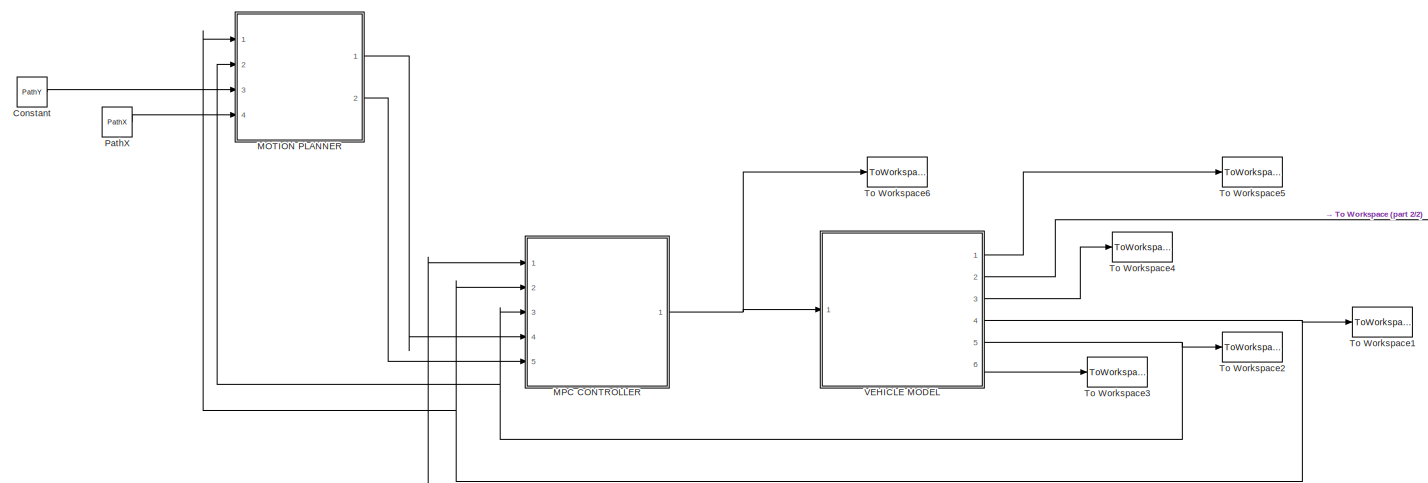
[diagram: root canvas - part 1/2, most of the canvas]
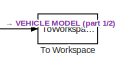
[diagram: root canvas - part 2/2, middle right region]
MODEL slx_a83fef0010d5
KIND model
CONFIG AbsTol = auto
CONFIG FixedStep = 0.01
CONFIG MaxStep = auto
CONFIG MinStep = auto
CONFIG RelTol = 1e-3
CONFIG SampleTimeConstraint = Unconstrained
CONFIG Solver = FixedStepAuto
CONFIG SolverMode = Auto
CONFIG SolverName = FixedStepAuto
CONFIG StartTime = 0.0
CONFIG StopTime = 16
BLOCK [Constant] Constant
  Value = PathY
  VectorParams1D = off
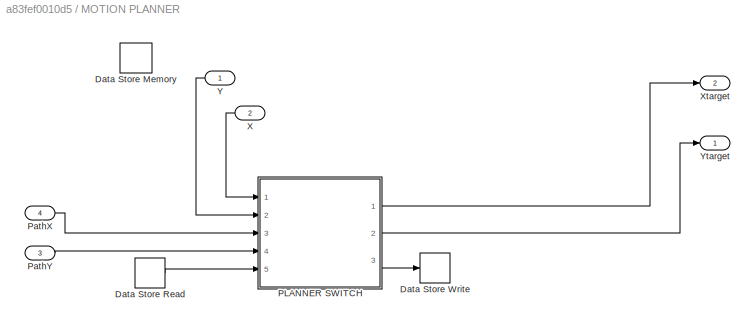
BLOCK [SubSystem] MOTION PLANNER
  Ports = [4, 2]
  RequestExecContextInheritance = off
  Variant = off
BLOCK [DataStoreMemory] MOTION PLANNER/Data Store Memory
  DataStoreName = passed
  OutDataTypeStr = uint8
  ReadBeforeWriteMsg = warning
  WriteAfterReadMsg = warning
  WriteAfterWriteMsg = warning
BLOCK [DataStoreRead] MOTION PLANNER/Data Store Read
  DataStoreName = passed
  Ports = [0, 1]
BLOCK [DataStoreWrite] MOTION PLANNER/Data Store Write
  DataStoreName = passed
  Ports = [1]
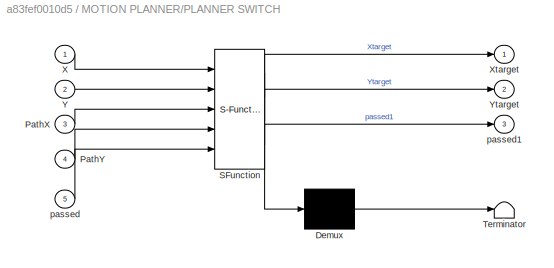
BLOCK [SubSystem] MOTION PLANNER/PLANNER SWITCH
  ErrorFcn = Stateflow.Translate.translate
  PermitHierarchicalResolution = ExplicitOnly
  Ports = [5, 3]
  RequestExecContextInheritance = off
  SFBlockType = MATLAB Function
  TreatAsAtomicUnit = on
  Variant = off
BLOCK [Demux] MOTION PLANNER/PLANNER SWITCH/ Demux 
  Outputs = 1
  Ports = [1, 1]
BLOCK [S-Function] MOTION PLANNER/PLANNER SWITCH/ SFunction 
  EnableBusSupport = on
  FunctionName = sf_sfun
  PortCounts = [5 4]
  Ports = [5, 4]
  SFunctionDeploymentMode = off
  Tag = Stateflow S-Function kinematic_obstacle_mpc2 1
BLOCK [Terminator] MOTION PLANNER/PLANNER SWITCH/ Terminator 
BLOCK [Inport] MOTION PLANNER/PLANNER SWITCH/PathX
  IconDisplay = Port number
  Port = 3
BLOCK [Inport] MOTION PLANNER/PLANNER SWITCH/PathY
  IconDisplay = Port number
  Port = 4
BLOCK [Inport] MOTION PLANNER/PLANNER SWITCH/X
  IconDisplay = Port number
BLOCK [Outport] MOTION PLANNER/PLANNER SWITCH/Xtarget
  IconDisplay = Port number
BLOCK [Inport] MOTION PLANNER/PLANNER SWITCH/Y
  IconDisplay = Port number
  Port = 2
BLOCK [Outport] MOTION PLANNER/PLANNER SWITCH/Ytarget
  IconDisplay = Port number
  Port = 2
BLOCK [Inport] MOTION PLANNER/PLANNER SWITCH/passed
  IconDisplay = Port number
  Port = 5
BLOCK [Outport] MOTION PLANNER/PLANNER SWITCH/passed1
  IconDisplay = Port number
  Port = 3
BLOCK [Inport] MOTION PLANNER/PathX 
  IconDisplay = Port number
  Port = 4
BLOCK [Inport] MOTION PLANNER/PathY
  IconDisplay = Port number
  Port = 3
BLOCK [Inport] MOTION PLANNER/X
  IconDisplay = Port number
  Port = 2
BLOCK [Outport] MOTION PLANNER/Xtarget
  IconDisplay = Port number
  Port = 2
BLOCK [Inport] MOTION PLANNER/Y 
  IconDisplay = Port number
BLOCK [Outport] MOTION PLANNER/Ytarget
  IconDisplay = Port number
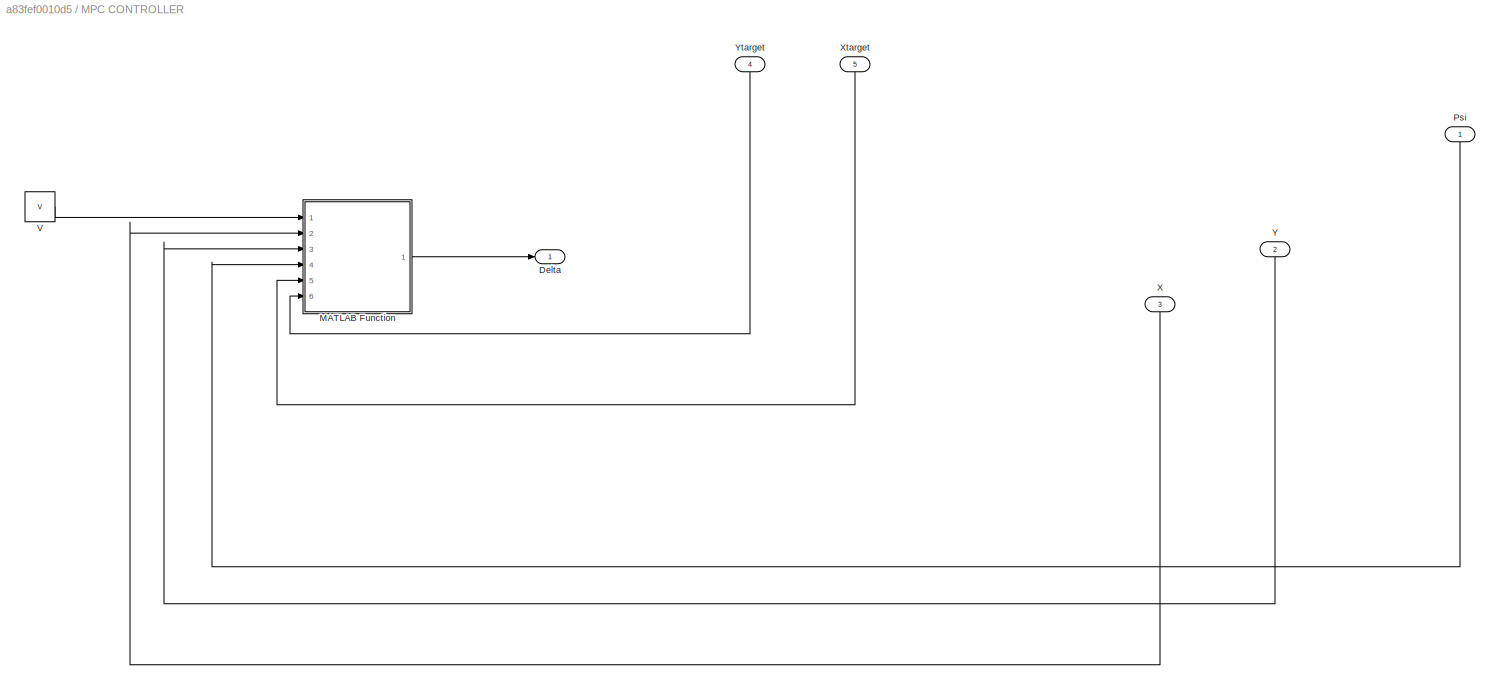
BLOCK [SubSystem] MPC CONTROLLER
  Ports = [5, 1]
  RequestExecContextInheritance = off
  Variant = off
BLOCK [Outport] MPC CONTROLLER/Delta
  IconDisplay = Port number
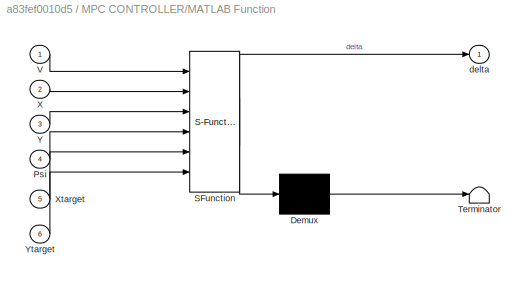
BLOCK [SubSystem] MPC CONTROLLER/MATLAB Function
  ErrorFcn = Stateflow.Translate.translate
  PermitHierarchicalResolution = ExplicitOnly
  Ports = [6, 1]
  RequestExecContextInheritance = off
  SFBlockType = MATLAB Function
  TreatAsAtomicUnit = on
  Variant = off
BLOCK [Demux] MPC CONTROLLER/MATLAB Function/ Demux 
  Outputs = 1
  Ports = [1, 1]
BLOCK [S-Function] MPC CONTROLLER/MATLAB Function/ SFunction 
  EnableBusSupport = on
  FunctionName = sf_sfun
  PortCounts = [6 2]
  Ports = [6, 2]
  SFunctionDeploymentMode = off
  Tag = Stateflow S-Function kinematic_obstacle_mpc2 2
BLOCK [Terminator] MPC CONTROLLER/MATLAB Function/ Terminator 
BLOCK [Inport] MPC CONTROLLER/MATLAB Function/Psi
  IconDisplay = Port number
  Port = 4
BLOCK [Inport] MPC CONTROLLER/MATLAB Function/V
  IconDisplay = Port number
BLOCK [Inport] MPC CONTROLLER/MATLAB Function/X
  IconDisplay = Port number
  Port = 2
BLOCK [Inport] MPC CONTROLLER/MATLAB Function/Xtarget
  IconDisplay = Port number
  Port = 5
BLOCK [Inport] MPC CONTROLLER/MATLAB Function/Y
  IconDisplay = Port number
  Port = 3
BLOCK [Inport] MPC CONTROLLER/MATLAB Function/Ytarget
  IconDisplay = Port number
  Port = 6
BLOCK [Outport] MPC CONTROLLER/MATLAB Function/delta
  IconDisplay = Port number
BLOCK [Inport] MPC CONTROLLER/Psi
  IconDisplay = Port number
BLOCK [Constant] MPC CONTROLLER/V 
  Value = V
BLOCK [Inport] MPC CONTROLLER/X
  IconDisplay = Port number
  Port = 3
BLOCK [Inport] MPC CONTROLLER/Xtarget
  IconDisplay = Port number
  Port = 5
BLOCK [Inport] MPC CONTROLLER/Y
  IconDisplay = Port number
  Port = 2
BLOCK [Inport] MPC CONTROLLER/Ytarget
  IconDisplay = Port number
  Port = 4
BLOCK [Constant] PathX
  Value = PathX
  VectorParams1D = off
BLOCK [ToWorkspace] To Workspace
  FixptAsFi = on
  MaxDataPoints = inf
  Ports = [1]
  SampleTime = -1
  Save2DSignal = 3-D array (concatenate along third dimension)
  SaveFormat = Structure With Time
  VariableName = Psi
BLOCK [ToWorkspace] To Workspace1
  FixptAsFi = on
  MaxDataPoints = inf
  Ports = [1]
  SampleTime = -1
  Save2DSignal = 3-D array (concatenate along third dimension)
  SaveFormat = Structure With Time
  VariableName = Y
BLOCK [ToWorkspace] To Workspace2
  FixptAsFi = on
  MaxDataPoints = inf
  Ports = [1]
  SampleTime = -1
  Save2DSignal = 3-D array (concatenate along third dimension)
  SaveFormat = Structure With Time
  VariableName = X
BLOCK [ToWorkspace] To Workspace3
  FixptAsFi = on
  MaxDataPoints = inf
  Ports = [1]
  SampleTime = -1
  Save2DSignal = 3-D array (concatenate along third dimension)
  SaveFormat = Structure With Time
  VariableName = XDot
BLOCK [ToWorkspace] To Workspace4
  FixptAsFi = on
  MaxDataPoints = inf
  Ports = [1]
  SampleTime = -1
  Save2DSignal = 3-D array (concatenate along third dimension)
  SaveFormat = Structure With Time
  VariableName = YDot
BLOCK [ToWorkspace] To Workspace5
  FixptAsFi = on
  MaxDataPoints = inf
  Ports = [1]
  SampleTime = -1
  Save2DSignal = 3-D array (concatenate along third dimension)
  SaveFormat = Structure With Time
  VariableName = PsiDot
BLOCK [ToWorkspace] To Workspace6
  FixptAsFi = on
  MaxDataPoints = inf
  Ports = [1]
  SampleTime = -1
  Save2DSignal = 3-D array (concatenate along third dimension)
  SaveFormat = Structure With Time
  VariableName = delta
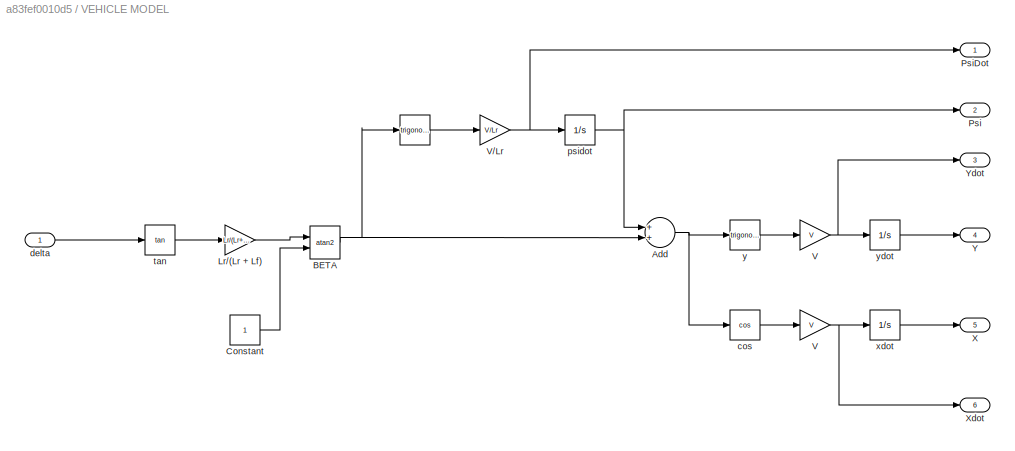
BLOCK [SubSystem] VEHICLE MODEL
  Ports = [1, 6]
  RequestExecContextInheritance = off
  Variant = off
BLOCK [Trigonometry] VEHICLE MODEL/ 
  Ports = [1, 1]
BLOCK [Sum] VEHICLE MODEL/Add
  InputSameDT = off
  OutDataTypeStr = Inherit: Inherit via internal rule
  Ports = [2, 1]
  SaturateOnIntegerOverflow = off
BLOCK [Trigonometry] VEHICLE MODEL/BETA
  Operator = atan2
  Ports = [2, 1]
BLOCK [Constant] VEHICLE MODEL/Constant
BLOCK [Gain] VEHICLE MODEL/Lr//(Lr + Lf)
  Gain = Lr/(Lr+Lf)
  OutDataTypeStr = Inherit: Inherit via internal rule
  ParamDataTypeStr = Inherit: Inherit via internal rule
  SaturateOnIntegerOverflow = off
BLOCK [Outport] VEHICLE MODEL/Psi
  IconDisplay = Port number
  Port = 2
BLOCK [Outport] VEHICLE MODEL/PsiDot
  IconDisplay = Port number
BLOCK [Gain] VEHICLE MODEL/V
  Gain = V
  OutDataTypeStr = Inherit: Inherit via internal rule
  ParamDataTypeStr = Inherit: Inherit via internal rule
  SaturateOnIntegerOverflow = off
BLOCK [Gain] VEHICLE MODEL/V 
  Gain = V
  OutDataTypeStr = Inherit: Inherit via internal rule
  ParamDataTypeStr = Inherit: Inherit via internal rule
  SaturateOnIntegerOverflow = off
BLOCK [Gain] VEHICLE MODEL/V//Lr
  Gain = V/Lr
  OutDataTypeStr = Inherit: Inherit via internal rule
  ParamDataTypeStr = Inherit: Inherit via internal rule
  SaturateOnIntegerOverflow = off
BLOCK [Outport] VEHICLE MODEL/X
  IconDisplay = Port number
  Port = 5
BLOCK [Outport] VEHICLE MODEL/Xdot
  IconDisplay = Port number
  Port = 6
BLOCK [Outport] VEHICLE MODEL/Y
  IconDisplay = Port number
  Port = 4
BLOCK [Outport] VEHICLE MODEL/Ydot
  IconDisplay = Port number
  Port = 3
BLOCK [Trigonometry] VEHICLE MODEL/cos
  Operator = cos
  Ports = [1, 1]
BLOCK [Inport] VEHICLE MODEL/delta 
  IconDisplay = Port number
BLOCK [Integrator] VEHICLE MODEL/psidot
  InitialCondition = Psi0
  Ports = [1, 1]
BLOCK [Trigonometry] VEHICLE MODEL/tan 
  Operator = tan
  Ports = [1, 1]
BLOCK [Integrator] VEHICLE MODEL/xdot
  InitialCondition = X0
  Ports = [1, 1]
BLOCK [Trigonometry] VEHICLE MODEL/y
  Ports = [1, 1]
BLOCK [Integrator] VEHICLE MODEL/ydot
  InitialCondition = Y0
  Ports = [1, 1]
LINE Constant:1 -> MOTION PLANNER:3
LINE MOTION PLANNER/Data Store Read:1 -> MOTION PLANNER/PLANNER SWITCH:5
LINE MOTION PLANNER/PLANNER SWITCH:1 -> MOTION PLANNER/Xtarget:1
LINE MOTION PLANNER/PLANNER SWITCH:2 -> MOTION PLANNER/Ytarget:1
LINE MOTION PLANNER/PLANNER SWITCH:3 -> MOTION PLANNER/Data Store Write:1
LINE MOTION PLANNER/PathX :1 -> MOTION PLANNER/PLANNER SWITCH:3
LINE MOTION PLANNER/PathY:1 -> MOTION PLANNER/PLANNER SWITCH:4
LINE MOTION PLANNER/X:1 -> MOTION PLANNER/PLANNER SWITCH:1
LINE MOTION PLANNER/Y :1 -> MOTION PLANNER/PLANNER SWITCH:2
LINE MOTION PLANNER:1 -> MPC CONTROLLER:4
LINE MOTION PLANNER:2 -> MPC CONTROLLER:5
LINE MPC CONTROLLER/MATLAB Function:1 -> MPC CONTROLLER/Delta:1
LINE MPC CONTROLLER/Psi:1 -> MPC CONTROLLER/MATLAB Function:4
LINE MPC CONTROLLER/V :1 -> MPC CONTROLLER/MATLAB Function:1
LINE MPC CONTROLLER/X:1 -> MPC CONTROLLER/MATLAB Function:2
LINE MPC CONTROLLER/Xtarget:1 -> MPC CONTROLLER/MATLAB Function:5
LINE MPC CONTROLLER/Y:1 -> MPC CONTROLLER/MATLAB Function:3
LINE MPC CONTROLLER/Ytarget:1 -> MPC CONTROLLER/MATLAB Function:6
NET MPC CONTROLLER:1 -> To Workspace6:1, VEHICLE MODEL:1
LINE PathX:1 -> MOTION PLANNER:4
LINE VEHICLE MODEL/ :1 -> VEHICLE MODEL/V//Lr:1
NET VEHICLE MODEL/Add:1 -> VEHICLE MODEL/cos:1, VEHICLE MODEL/y:1
NET VEHICLE MODEL/BETA:1 -> VEHICLE MODEL/ :1, VEHICLE MODEL/Add:2
LINE VEHICLE MODEL/Constant:1 -> VEHICLE MODEL/BETA:2
LINE VEHICLE MODEL/Lr//(Lr + Lf):1 -> VEHICLE MODEL/BETA:1
NET VEHICLE MODEL/V :1 -> VEHICLE MODEL/Xdot:1, VEHICLE MODEL/xdot:1
NET VEHICLE MODEL/V//Lr:1 -> VEHICLE MODEL/PsiDot:1, VEHICLE MODEL/psidot:1
NET VEHICLE MODEL/V:1 -> VEHICLE MODEL/Ydot:1, VEHICLE MODEL/ydot:1
LINE VEHICLE MODEL/cos:1 -> VEHICLE MODEL/V :1
LINE VEHICLE MODEL/delta :1 -> VEHICLE MODEL/tan :1
NET VEHICLE MODEL/psidot:1 -> VEHICLE MODEL/Add:1, VEHICLE MODEL/Psi:1
LINE VEHICLE MODEL/tan :1 -> VEHICLE MODEL/Lr//(Lr + Lf):1
LINE VEHICLE MODEL/xdot:1 -> VEHICLE MODEL/X:1
LINE VEHICLE MODEL/y:1 -> VEHICLE MODEL/V:1
LINE VEHICLE MODEL/ydot:1 -> VEHICLE MODEL/Y:1
LINE VEHICLE MODEL:1 -> To Workspace5:1
NET VEHICLE MODEL:2 -> MPC CONTROLLER:1, To Workspace:1
LINE VEHICLE MODEL:3 -> To Workspace4:1
NET VEHICLE MODEL:4 -> MOTION PLANNER:1, MPC CONTROLLER:2, To Workspace1:1
NET VEHICLE MODEL:5 -> MOTION PLANNER:2, MPC CONTROLLER:3, To Workspace2:1
LINE VEHICLE MODEL:6 -> To Workspace3:1
note: NET lines group one-source signal fan-out (src -> all destinations, sorted); 1:1 wires keep LINE
CHART MOTION PLANNER/PLANNER SWITCH states=1 transitions=1
  STATE_LABEL 'eML_blk_kernel()'
  STATE_LABEL 'SCRIPT:\nfunction [Xtarget, Ytarget, passed1] = PlanSwitch(X,Y,PathX,PathY, passed)\n%#codegen\n\n\npassed\ntarget = (passed + 1)\nif target > length(PathX)\n    passed1 = passed;\n    Xtarget = PathX(target);\n    Ytarget = PathY(target);\nelse\n    dist2target = sqrt((PathX(target)-X)^2+(PathY(target)-Y)^2);\n    if dist2target < 0.2\n        passed1 =  passed + 1\n        if target < length(PathX)\n           ...<+299ch>'
CHART MPC CONTROLLER/MATLAB Function states=1 transitions=1
  STATE_LABEL 'eML_blk_kernel()'
  STATE_LABEL 'SCRIPT:\nfunction delta = fcn(V,X,Y,Psi,Xtarget,Ytarget)\n%#codegen\n% \ndt = 0.1;\nR = [cos(Psi), -sin(Psi);sin(Psi),cos(Psi)];\nLmin = 1000;\ndelta_best = 0;\nfor delta = linspace(-pi/6,pi/6,21)\n    dx = V*dt;\n    dy = 2*V*delta*dt;\n    drot = R*[dx;dy];\n    Xfin = X + drot(1);\n    Yfin = Y + drot(2);\n    L = sqrt((Xtarget - Xfin)^2+(Ytarget - Yfin)^2);\n    if L < Lmin\n        Lmin = L;\n        delta_be...<+48ch>'
